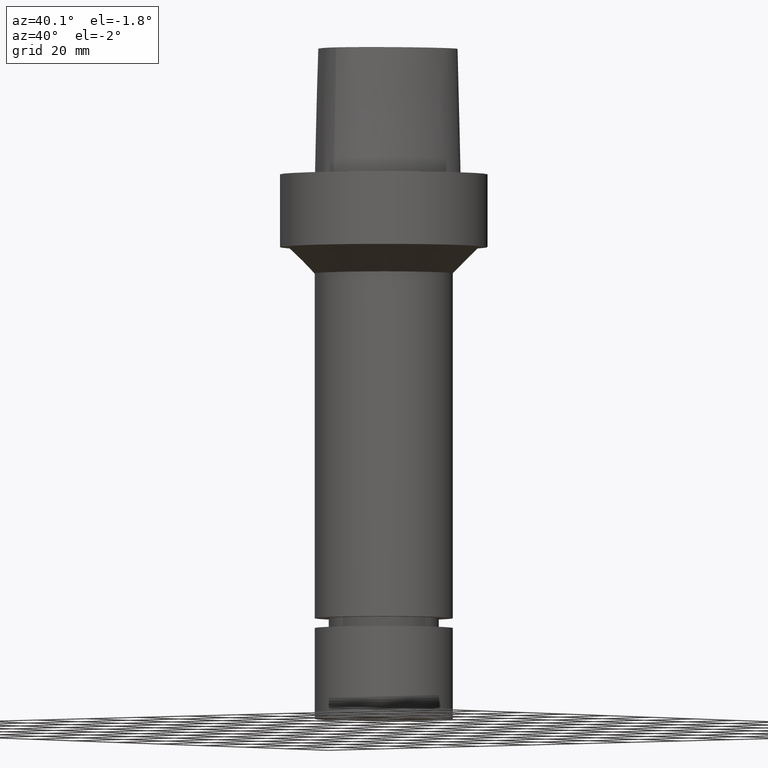
[diagram: clean part render]
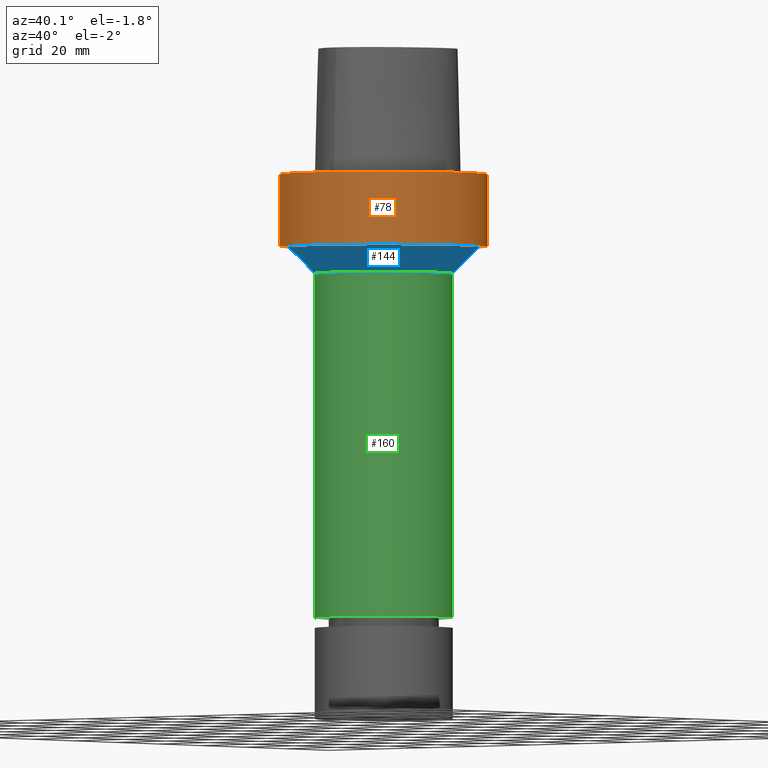
[diagram: same view with three faces highlighted in distinct colors, each labeled with its STEP entity id]
A machine part, auxiliary view with three faces highlighted in distinct colors.
Their STEP definitions:

[orange] entity #78 — the highlighted cylindrical surface (bore or boss wall) has radius 31.5 mm, axis along (0, 0, -1).
#78=ADVANCED_FACE('Unnamed[1]',(#200,#201),#202,.T.);
#93=EDGE_CURVE('Unnamed[1]',#224,#224,#225,.T.);
#119=EDGE_CURVE('Unnamed[1]',#261,#261,#262,.T.);
#200=FACE_BOUND('',#391,.T.);
#201=FACE_BOUND('',#392,.T.);
#202=CYLINDRICAL_SURFACE('',#393,31.5);
#224=VERTEX_POINT('',#507);
#225=CIRCLE('',#508,31.5);
#261=VERTEX_POINT('',#555);
#262=CIRCLE('',#556,31.5);
#391=EDGE_LOOP('',(#768));
#392=EDGE_LOOP('',(#769));
#393=AXIS2_PLACEMENT_3D('',#770,#771,#772);
#507=CARTESIAN_POINT('',(1.34711147906212E-015,31.5,-22.0000000000006));
#508=AXIS2_PLACEMENT_3D('',#794,#795,#796);
#555=CARTESIAN_POINT('',(-3.88267476788467E-031,31.5,3.85763741731416E-015));
#556=AXIS2_PLACEMENT_3D('',#834,#835,#836);
#768=ORIENTED_EDGE('',*,*,#93,.F.);
#769=ORIENTED_EDGE('',*,*,#119,.T.);
#770=CARTESIAN_POINT('',(6.73555739531062E-016,1.34711147906212E-015,-11.0000000000003));
#771=DIRECTION('',(6.12323399573677E-017,1.22464679914735E-016,-1.0));
#772=DIRECTION('',(-1.23259516440783E-032,1.0,1.22464679914735E-016));
#794=CARTESIAN_POINT('',(1.34711147906212E-015,2.69422295812425E-015,-22.0000000000006));
#795=DIRECTION('',(6.12323399573677E-017,1.22464679914735E-016,-1.0));
#796=DIRECTION('',(-1.23259516440783E-032,1.0,1.22464679914735E-016));
#834=CARTESIAN_POINT('',(0.0,0.0,0.0));
#835=DIRECTION('',(6.12323399573677E-017,1.22464679914735E-016,-1.0));
#836=DIRECTION('',(-1.23259516440783E-032,1.0,1.22464679914735E-016));

[blue] entity #144 — the highlighted conical surface has half-angle 45 deg.
#144=ADVANCED_FACE('Unnamed[1]',(#296,#297),#298,.T.);
#157=EDGE_CURVE('Unnamed[1]',#316,#316,#317,.T.);
#164=EDGE_CURVE('Unnamed[1]',#326,#326,#327,.T.);
#296=FACE_BOUND('',#680,.T.);
#297=FACE_BOUND('',#681,.T.);
#298=CONICAL_SURFACE('',#682,25.0000000000004,0.785398163397454);
#316=VERTEX_POINT('',#706);
#317=CIRCLE('',#707,21.0000000000004);
#326=VERTEX_POINT('',#720);
#327=CIRCLE('',#721,29.0000000000004);
#680=EDGE_LOOP('',(#870));
#681=EDGE_LOOP('',(#871));
#682=AXIS2_PLACEMENT_3D('',#872,#873,#874);
#706=CARTESIAN_POINT('',(1.83697019872106E-015,21.0000000000004,-30.0000000000005));
#707=AXIS2_PLACEMENT_3D('',#893,#894,#895);
#720=CARTESIAN_POINT('',(1.34711147906212E-015,29.0000000000004,-22.0000000000006));
#721=AXIS2_PLACEMENT_3D('',#903,#904,#905);
#870=ORIENTED_EDGE('',*,*,#157,.F.);
#871=ORIENTED_EDGE('',*,*,#164,.T.);
#872=CARTESIAN_POINT('',(1.59204083889159E-015,3.18408167778318E-015,-26.0000000000005));
#873=DIRECTION('',(-6.12323399573677E-017,-1.22464679914735E-016,1.0));
#874=DIRECTION('',(-1.23259516440783E-032,1.0,1.22464679914735E-016));
#893=CARTESIAN_POINT('',(1.83697019872106E-015,3.67394039744212E-015,-30.0000000000005));
#894=DIRECTION('',(6.12323399573677E-017,1.22464679914735E-016,-1.0));
#895=DIRECTION('',(-1.23259516440783E-032,1.0,1.22464679914735E-016));
#903=CARTESIAN_POINT('',(1.34711147906212E-015,2.69422295812425E-015,-22.0000000000006));
#904=DIRECTION('',(6.12323399573677E-017,1.22464679914735E-016,-1.0));
#905=DIRECTION('',(-1.23259516440783E-032,1.0,1.22464679914735E-016));

[green] entity #160 — the highlighted cylindrical surface (bore or boss wall) has radius 21 mm, axis along (0, 0, -1).
#91=EDGE_CURVE('Unnamed[1]',#221,#221,#222,.T.);
#157=EDGE_CURVE('Unnamed[1]',#316,#316,#317,.T.);
#160=ADVANCED_FACE('Unnamed[1]',(#320,#321),#322,.T.);
#221=VERTEX_POINT('',#503);
#222=CIRCLE('',#504,21.0);
#316=VERTEX_POINT('',#706);
#317=CIRCLE('',#707,21.0000000000004);
#320=FACE_BOUND('',#711,.T.);
#321=FACE_BOUND('',#712,.T.);
#322=CYLINDRICAL_SURFACE('',#713,21.0000000000002);
#503=CARTESIAN_POINT('',(8.23574972426594E-015,21.0,-134.5));
#504=AXIS2_PLACEMENT_3D('',#791,#792,#793);
#706=CARTESIAN_POINT('',(1.83697019872106E-015,21.0000000000004,-30.0000000000005));
#707=AXIS2_PLACEMENT_3D('',#893,#894,#895);
#711=EDGE_LOOP('',(#897));
#712=EDGE_LOOP('',(#898));
#713=AXIS2_PLACEMENT_3D('',#899,#900,#901);
#791=CARTESIAN_POINT('',(8.23574972426594E-015,1.64714994485319E-014,-134.5));
#792=DIRECTION('',(6.12323399573677E-017,1.22464679914735E-016,-1.0));
#793=DIRECTION('',(-1.23259516440783E-032,1.0,1.22464679914735E-016));
#893=CARTESIAN_POINT('',(1.83697019872106E-015,3.67394039744212E-015,-30.0000000000005));
#894=DIRECTION('',(6.12323399573677E-017,1.22464679914735E-016,-1.0));
#895=DIRECTION('',(-1.23259516440783E-032,1.0,1.22464679914735E-016));
#897=ORIENTED_EDGE('',*,*,#91,.F.);
#898=ORIENTED_EDGE('',*,*,#157,.T.);
#899=CARTESIAN_POINT('',(5.0363599614935E-015,1.0072719922987E-014,-82.2500000000002));
#900=DIRECTION('',(6.12323399573677E-017,1.22464679914735E-016,-1.0));
#901=DIRECTION('',(-1.23259516440783E-032,1.0,1.22464679914735E-016));